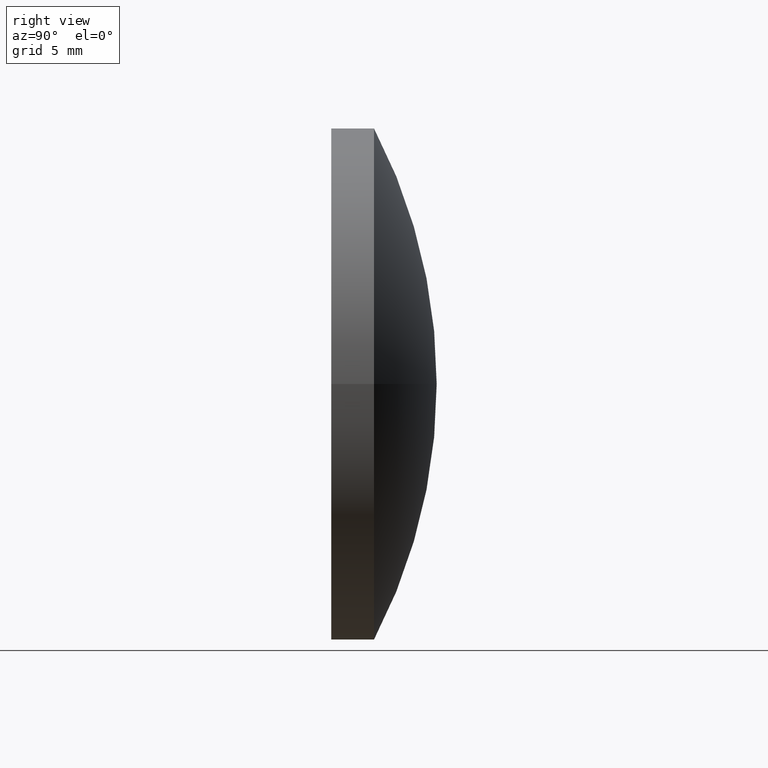
[diagram: clean part render]
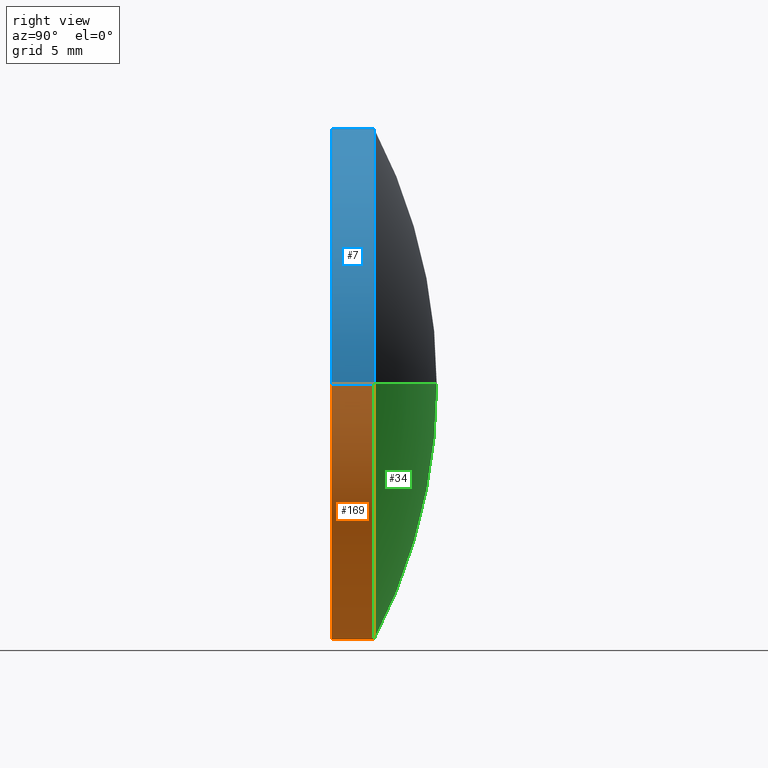
[diagram: same view with three faces highlighted in distinct colors, each labeled with its STEP entity id]
A machine part, right view with three faces highlighted in distinct colors.
Their STEP definitions:

[orange] entity #169 — the highlighted cylindrical surface (partial cylindrical patch) has radius 15 mm, axis along (0, 1, -0).
#4 = DIRECTION ( 'NONE',  ( 2.242870150788507762E-17, 1.000000000000000000, -0.000000000000000000 ) ) ;
#11 = AXIS2_PLACEMENT_3D ( 'NONE', #190, #4, #35 ) ;
#21 = DIRECTION ( 'NONE',  ( 2.242870150788507762E-17, 1.000000000000000000, -0.000000000000000000 ) ) ;
#22 = DIRECTION ( 'NONE',  ( 2.242870150788507762E-17, 1.000000000000000000, -0.000000000000000000 ) ) ;
#33 = CYLINDRICAL_SURFACE ( 'NONE', #164, 15.00000000000000000 ) ;
#35 = DIRECTION ( 'NONE',  ( -1.000000000000000000, 2.891205793294678696E-17, 0.000000000000000000 ) ) ;
#41 = CARTESIAN_POINT ( 'NONE',  ( -15.00000000000000000, 6.169999999999999929, 0.000000000000000000 ) ) ;
#43 = EDGE_CURVE ( 'NONE', #127, #72, #56, .T. ) ;
#56 = LINE ( 'NONE', #41, #198 ) ;
#71 = DIRECTION ( 'NONE',  ( 2.242870150788507762E-17, 1.000000000000000000, -0.000000000000000000 ) ) ;
#72 = VERTEX_POINT ( 'NONE', #165 ) ;
#81 = CARTESIAN_POINT ( 'NONE',  ( 15.00000000000000178, 2.499999999999997780, 1.836970198721029983E-15 ) ) ;
#83 = CARTESIAN_POINT ( 'NONE',  ( -2.407412430484044816E-32, -1.734723475976807094E-15, 0.000000000000000000 ) ) ;
#85 = ORIENTED_EDGE ( 'NONE', *, *, #43, .T. ) ;
#87 = CARTESIAN_POINT ( 'NONE',  ( 15.00000000000000000, 6.169999999999999929, 1.836970198721029589E-15 ) ) ;
#93 = FACE_OUTER_BOUND ( 'NONE', #201, .T. ) ;
#99 = EDGE_CURVE ( 'NONE', #106, #125, #183, .T. ) ;
#105 = ORIENTED_EDGE ( 'NONE', *, *, #188, .F. ) ;
#106 = VERTEX_POINT ( 'NONE', #141 ) ;
#107 = AXIS2_PLACEMENT_3D ( 'NONE', #83, #71, #191 ) ;
#114 = EDGE_CURVE ( 'NONE', #106, #127, #152, .T. ) ;
#121 = VECTOR ( 'NONE', #22, 1000.000000000000000 ) ;
#125 = VERTEX_POINT ( 'NONE', #81 ) ;
#127 = VERTEX_POINT ( 'NONE', #162 ) ;
#130 = ORIENTED_EDGE ( 'NONE', *, *, #114, .T. ) ;
#135 = CARTESIAN_POINT ( 'NONE',  ( 1.383850883036509511E-16, 6.169999999999999929, 0.000000000000000000 ) ) ;
#137 = CIRCLE ( 'NONE', #11, 15.00000000000000000 ) ;
#141 = CARTESIAN_POINT ( 'NONE',  ( 15.00000000000000000, -2.071153998595083505E-15, 1.836970198721029589E-15 ) ) ;
#147 = DIRECTION ( 'NONE',  ( 2.242870150788507762E-17, 1.000000000000000000, -0.000000000000000000 ) ) ;
#149 = DIRECTION ( 'NONE',  ( -1.000000000000000000, 0.000000000000000000, 0.000000000000000000 ) ) ;
#152 = CIRCLE ( 'NONE', #107, 15.00000000000000000 ) ;
#158 = ORIENTED_EDGE ( 'NONE', *, *, #99, .F. ) ;
#162 = CARTESIAN_POINT ( 'NONE',  ( -15.00000000000000000, -1.398292953358530881E-15, 0.000000000000000000 ) ) ;
#164 = AXIS2_PLACEMENT_3D ( 'NONE', #135, #147, #149 ) ;
#165 = CARTESIAN_POINT ( 'NONE',  ( -15.00000000000000355, 2.499999999999998668, 0.000000000000000000 ) ) ;
#169 = ADVANCED_FACE ( 'NONE', ( #93 ), #33, .T. ) ;
#183 = LINE ( 'NONE', #87, #121 ) ;
#188 = EDGE_CURVE ( 'NONE', #125, #72, #137, .T. ) ;
#190 = CARTESIAN_POINT ( 'NONE',  ( 5.607175376971264475E-17, 2.499999999999997780, 0.000000000000000000 ) ) ;
#191 = DIRECTION ( 'NONE',  ( -1.000000000000000000, 2.242870150788508378E-17, 0.000000000000000000 ) ) ;
#198 = VECTOR ( 'NONE', #21, 1000.000000000000000 ) ;
#201 = EDGE_LOOP ( 'NONE', ( #158, #130, #85, #105 ) ) ;

[blue] entity #7 — the highlighted cylindrical surface (partial cylindrical patch) has radius 15 mm, axis along (0, 1, -0).
#1 = DIRECTION ( 'NONE',  ( -1.000000000000000000, 2.242870150788508378E-17, 0.000000000000000000 ) ) ;
#7 = ADVANCED_FACE ( 'NONE', ( #185 ), #138, .T. ) ;
#8 = CARTESIAN_POINT ( 'NONE',  ( -2.407412430484044816E-32, -1.734723475976807094E-15, 0.000000000000000000 ) ) ;
#13 = EDGE_LOOP ( 'NONE', ( #170, #168, #19, #45 ) ) ;
#16 = DIRECTION ( 'NONE',  ( 2.242870150788507762E-17, 1.000000000000000000, -0.000000000000000000 ) ) ;
#19 = ORIENTED_EDGE ( 'NONE', *, *, #46, .F. ) ;
#21 = DIRECTION ( 'NONE',  ( 2.242870150788507762E-17, 1.000000000000000000, -0.000000000000000000 ) ) ;
#22 = DIRECTION ( 'NONE',  ( 2.242870150788507762E-17, 1.000000000000000000, -0.000000000000000000 ) ) ;
#26 = AXIS2_PLACEMENT_3D ( 'NONE', #8, #16, #1 ) ;
#40 = CIRCLE ( 'NONE', #92, 15.00000000000000000 ) ;
#41 = CARTESIAN_POINT ( 'NONE',  ( -15.00000000000000000, 6.169999999999999929, 0.000000000000000000 ) ) ;
#43 = EDGE_CURVE ( 'NONE', #127, #72, #56, .T. ) ;
#45 = ORIENTED_EDGE ( 'NONE', *, *, #43, .F. ) ;
#46 = EDGE_CURVE ( 'NONE', #72, #125, #40, .T. ) ;
#55 = AXIS2_PLACEMENT_3D ( 'NONE', #102, #197, #74 ) ;
#56 = LINE ( 'NONE', #41, #198 ) ;
#72 = VERTEX_POINT ( 'NONE', #165 ) ;
#74 = DIRECTION ( 'NONE',  ( -1.000000000000000000, 0.000000000000000000, 0.000000000000000000 ) ) ;
#81 = CARTESIAN_POINT ( 'NONE',  ( 15.00000000000000178, 2.499999999999997780, 1.836970198721029983E-15 ) ) ;
#87 = CARTESIAN_POINT ( 'NONE',  ( 15.00000000000000000, 6.169999999999999929, 1.836970198721029589E-15 ) ) ;
#92 = AXIS2_PLACEMENT_3D ( 'NONE', #157, #167, #103 ) ;
#99 = EDGE_CURVE ( 'NONE', #106, #125, #183, .T. ) ;
#102 = CARTESIAN_POINT ( 'NONE',  ( 1.383850883036509511E-16, 6.169999999999999929, 0.000000000000000000 ) ) ;
#103 = DIRECTION ( 'NONE',  ( -1.000000000000000000, 2.891205793294678696E-17, 0.000000000000000000 ) ) ;
#106 = VERTEX_POINT ( 'NONE', #141 ) ;
#116 = CIRCLE ( 'NONE', #26, 15.00000000000000000 ) ;
#121 = VECTOR ( 'NONE', #22, 1000.000000000000000 ) ;
#125 = VERTEX_POINT ( 'NONE', #81 ) ;
#127 = VERTEX_POINT ( 'NONE', #162 ) ;
#138 = CYLINDRICAL_SURFACE ( 'NONE', #55, 15.00000000000000000 ) ;
#141 = CARTESIAN_POINT ( 'NONE',  ( 15.00000000000000000, -2.071153998595083505E-15, 1.836970198721029589E-15 ) ) ;
#155 = EDGE_CURVE ( 'NONE', #127, #106, #116, .T. ) ;
#157 = CARTESIAN_POINT ( 'NONE',  ( 5.607175376971264475E-17, 2.499999999999997780, 0.000000000000000000 ) ) ;
#162 = CARTESIAN_POINT ( 'NONE',  ( -15.00000000000000000, -1.398292953358530881E-15, 0.000000000000000000 ) ) ;
#165 = CARTESIAN_POINT ( 'NONE',  ( -15.00000000000000355, 2.499999999999998668, 0.000000000000000000 ) ) ;
#167 = DIRECTION ( 'NONE',  ( 2.242870150788507762E-17, 1.000000000000000000, -0.000000000000000000 ) ) ;
#168 = ORIENTED_EDGE ( 'NONE', *, *, #99, .T. ) ;
#170 = ORIENTED_EDGE ( 'NONE', *, *, #155, .T. ) ;
#183 = LINE ( 'NONE', #87, #121 ) ;
#185 = FACE_OUTER_BOUND ( 'NONE', #13, .T. ) ;
#197 = DIRECTION ( 'NONE',  ( 2.242870150788507762E-17, 1.000000000000000000, -0.000000000000000000 ) ) ;
#198 = VECTOR ( 'NONE', #21, 1000.000000000000000 ) ;

[green] entity #34 — the highlighted toroidal blend (fillet) surface has major radius 0.0027 mm and minor (blend) radius 32.5 mm.
#4 = DIRECTION ( 'NONE',  ( 2.242870150788507762E-17, 1.000000000000000000, -0.000000000000000000 ) ) ;
#5 = AXIS2_PLACEMENT_3D ( 'NONE', #77, #144, #67 ) ;
#11 = AXIS2_PLACEMENT_3D ( 'NONE', #190, #4, #35 ) ;
#12 = CIRCLE ( 'NONE', #159, 32.50000000000000711 ) ;
#28 = ORIENTED_EDGE ( 'NONE', *, *, #188, .T. ) ;
#29 = ORIENTED_EDGE ( 'NONE', *, *, #145, .F. ) ;
#34 = ADVANCED_FACE ( 'NONE', ( #154 ), #136, .T. ) ;
#35 = DIRECTION ( 'NONE',  ( -1.000000000000000000, 2.891205793294678696E-17, 0.000000000000000000 ) ) ;
#44 = CIRCLE ( 'NONE', #5, 32.50000000000000711 ) ;
#47 = DIRECTION ( 'NONE',  ( -0.000000000000000000, 0.000000000000000000, -1.000000000000000000 ) ) ;
#58 = EDGE_LOOP ( 'NONE', ( #29, #28, #163 ) ) ;
#67 = DIRECTION ( 'NONE',  ( 1.000000000000000000, 0.000000000000000000, 1.224646799147353454E-16 ) ) ;
#72 = VERTEX_POINT ( 'NONE', #165 ) ;
#76 = AXIS2_PLACEMENT_3D ( 'NONE', #123, #196, #182 ) ;
#77 = CARTESIAN_POINT ( 'NONE',  ( -0.002703305825796158048, -26.32999988757135412, -3.310594826676934179E-19 ) ) ;
#81 = CARTESIAN_POINT ( 'NONE',  ( 15.00000000000000178, 2.499999999999997780, 1.836970198721029983E-15 ) ) ;
#123 = CARTESIAN_POINT ( 'NONE',  ( -5.903819642362473363E-16, -26.32999988757135412, 0.000000000000000000 ) ) ;
#125 = VERTEX_POINT ( 'NONE', #81 ) ;
#132 = EDGE_CURVE ( 'NONE', #72, #143, #12, .T. ) ;
#136 = TOROIDAL_SURFACE ( 'NONE', #76, -0.002703305825795567375, 32.50000000000000711 ) ;
#137 = CIRCLE ( 'NONE', #11, 15.00000000000000000 ) ;
#143 = VERTEX_POINT ( 'NONE', #177 ) ;
#144 = DIRECTION ( 'NONE',  ( -1.224646799147353207E-16, 2.746723751066287444E-33, 1.000000000000000000 ) ) ;
#145 = EDGE_CURVE ( 'NONE', #125, #143, #44, .T. ) ;
#154 = FACE_OUTER_BOUND ( 'NONE', #58, .T. ) ;
#159 = AXIS2_PLACEMENT_3D ( 'NONE', #160, #47, #172 ) ;
#160 = CARTESIAN_POINT ( 'NONE',  ( 0.002703305825794977135, -26.32999988757135412, 0.000000000000000000 ) ) ;
#163 = ORIENTED_EDGE ( 'NONE', *, *, #132, .T. ) ;
#165 = CARTESIAN_POINT ( 'NONE',  ( -15.00000000000000355, 2.499999999999998668, 0.000000000000000000 ) ) ;
#172 = DIRECTION ( 'NONE',  ( -1.000000000000000000, 0.000000000000000000, 0.000000000000000000 ) ) ;
#177 = CARTESIAN_POINT ( 'NONE',  ( 1.383850883036509511E-16, 6.169999999999999929, 0.000000000000000000 ) ) ;
#182 = DIRECTION ( 'NONE',  ( -1.000000000000000000, 2.242870150788507762E-17, 0.000000000000000000 ) ) ;
#188 = EDGE_CURVE ( 'NONE', #125, #72, #137, .T. ) ;
#190 = CARTESIAN_POINT ( 'NONE',  ( 5.607175376971264475E-17, 2.499999999999997780, 0.000000000000000000 ) ) ;
#196 = DIRECTION ( 'NONE',  ( 2.242870150788507762E-17, 1.000000000000000000, -0.000000000000000000 ) ) ;